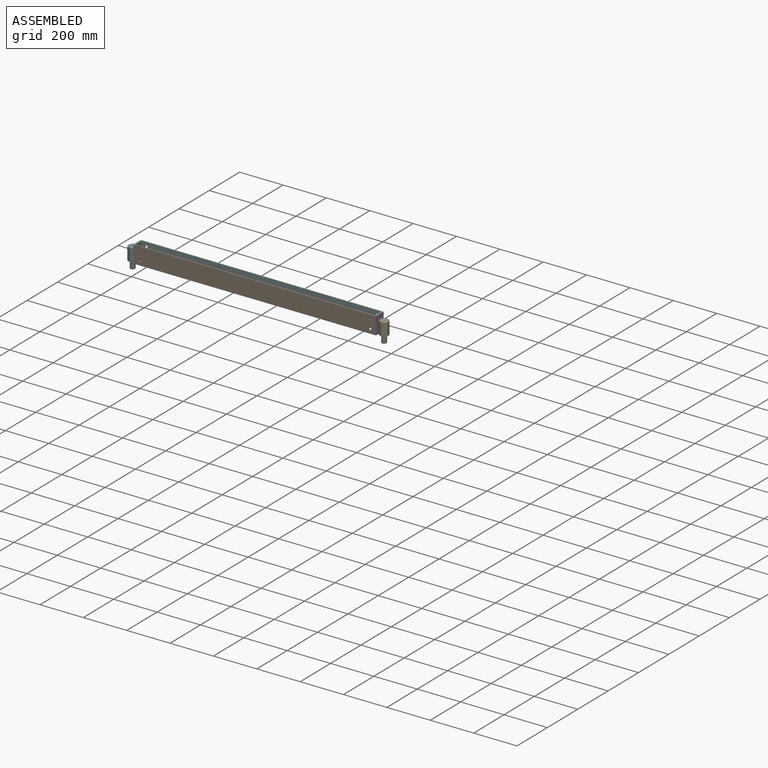
[diagram: assembled view]
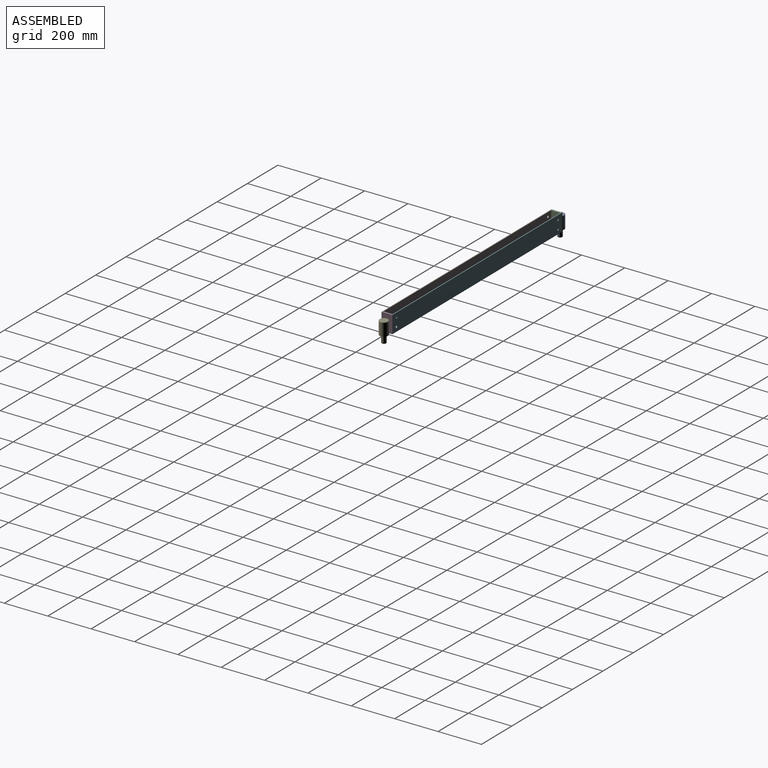
[diagram: assembled view, second angle]
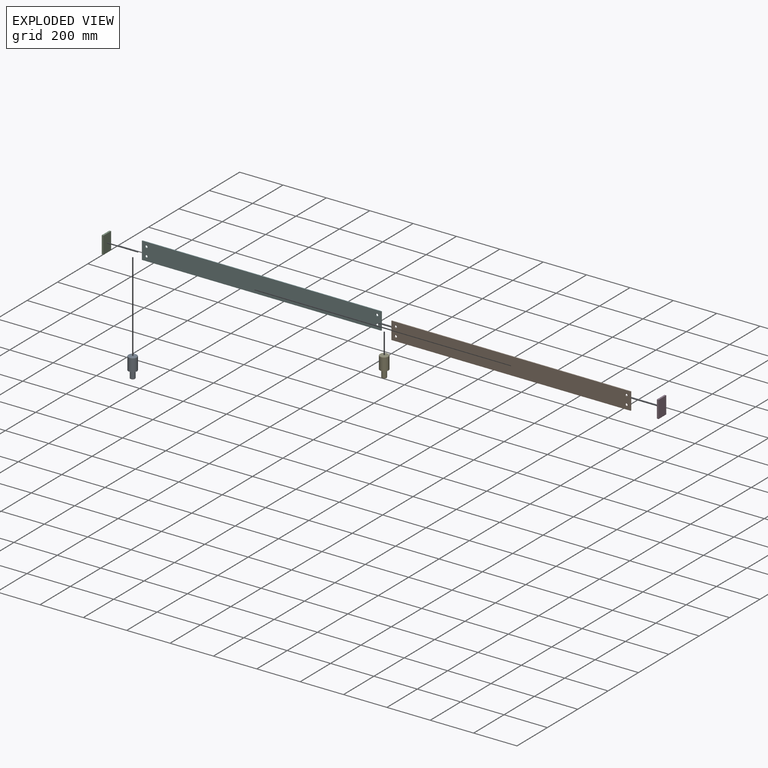
[diagram: exploded view]
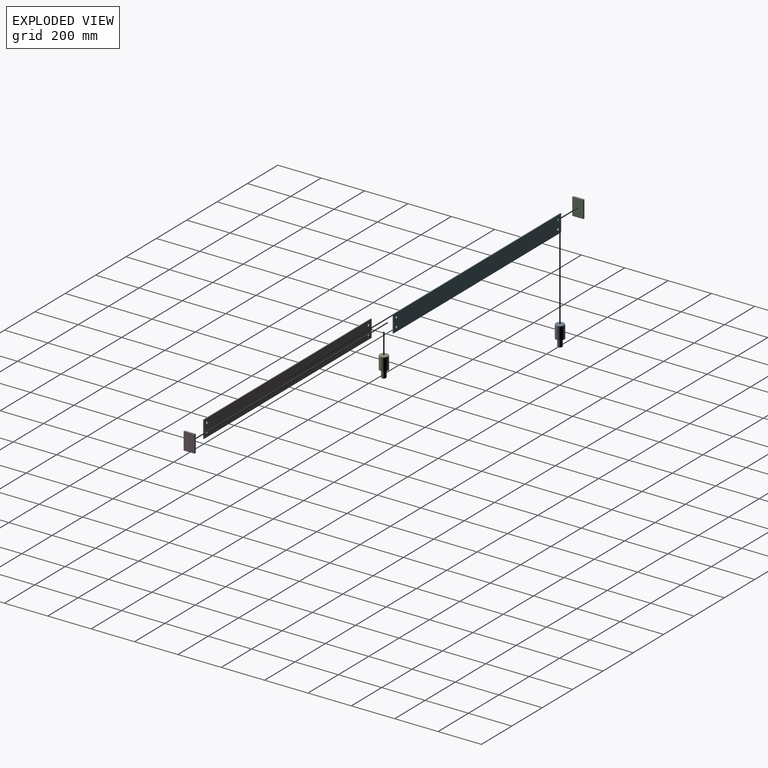
[diagram: exploded view, second angle]
ASSEMBLY  parts=6 mates=5
PART A: 7 faces, bbox 43.3x43.3x95 mm
  f0: plane 16x16mm, normal (0,0,1), area 201.1mm2, adj f1
  f1: torus R=8mm, axis (0,0,1), area 293.4mm2, adj f0,f2
  f2: cylinder r=11mm len=32mm, axis (0,0,1), area 2211.7mm2, adj f1,f3
  f3: plane 40x40mm, normal (0,0,1), area 876.5mm2, adj f2,f4
  f4: cylinder r=20mm len=57mm, axis (0,0,1), area 7162.8mm2, adj f3,f5
  f5: torus R=17mm, axis (0,0,1), area 559.9mm2, adj f4,f6
  f6: plane 34x34mm, normal (0,0,-1), area 907.9mm2, adj f5
PART B: 10 faces, bbox 1104x4x80 mm
  f0: plane 1104x4mm, normal (0,0,1), area 4416mm2, adj f1,f7,f8,f9
  f1: plane 80x4mm, normal (-1,0,0), area 320mm2, adj f0,f2,f8,f9
  f2: plane 1104x4mm, normal (0,0,-1), area 4416mm2, adj f1,f7,f8,f9
  f3: cylinder r=5.5mm len=11mm, axis (0,1,0), area 138.2mm2, adj f8,f9
  f4: cylinder r=5.5mm len=11mm, axis (0,1,0), area 138.2mm2, adj f8,f9
  f5: cylinder r=5.5mm len=11mm, axis (0,1,0), area 138.2mm2, adj f8,f9
  f6: cylinder r=5.5mm len=11mm, axis (0,1,0), area 138.2mm2, adj f8,f9
  f7: plane 80x4mm, normal (1,0,0), area 320mm2, adj f0,f2,f8,f9
  f8: plane 1104x80mm, normal (0,-1,0), area 87939.9mm2, adj f0,f1,f2,f3,f4,f5,f6,f7
  f9: plane 1104x80mm, normal (0,1,0), area 87939.9mm2, adj f0,f1,f2,f3,f4,f5,f6,f7
PART C: 6 faces, bbox 8x50x80 mm
  f0: plane 80x8mm, normal (0,1,0), area 640mm2, adj f1,f3,f4,f5
  f1: plane 50x8mm, normal (0,0,1), area 400mm2, adj f0,f2,f4,f5
  f2: plane 80x8mm, normal (0,-1,0), area 640mm2, adj f1,f3,f4,f5
  f3: plane 50x8mm, normal (0,0,-1), area 400mm2, adj f0,f2,f4,f5
  f4: plane 80x50mm, normal (1,0,0), area 4000mm2, adj f0,f1,f2,f3
  f5: plane 80x50mm, normal (-1,0,0), area 4000mm2, adj f0,f1,f2,f3
PART D: same geometry as C
PART E: same geometry as A
PART F: same geometry as B
PLACE A rot(axis=(1,0,0),180deg) t=(148.94,26.03,-90.72)mm
PLACE B t=(176.94,5.03,-123.73)mm
PLACE C t=(168.94,26.03,-106.84)mm fixed
PLACE D t=(1280.94,26.03,-106.84)mm
PLACE E rot(axis=(1,0,0),180deg) t=(1308.94,26.03,-90.72)mm
PLACE F t=(176.94,51.03,-123.73)mm
MATE fastened B.f7 <-> D.f5  axis (1,0,0) through (1280.94,1.03,-110.72)mm
MATE fastened A.f1 <-> C.f3  axis (0,0,-1) through (148.94,26.03,-150.72)mm
MATE fastened E.f1 <-> D.f3  axis (0,0,-1) through (1308.94,26.03,-150.72)mm
MATE fastened B.f1 <-> C.f4  axis (-1,0,0) through (176.94,1.03,-110.72)mm
MATE fastened F.f1 <-> C.f4  axis (-1,0,0) through (176.94,51.03,-110.72)mm
